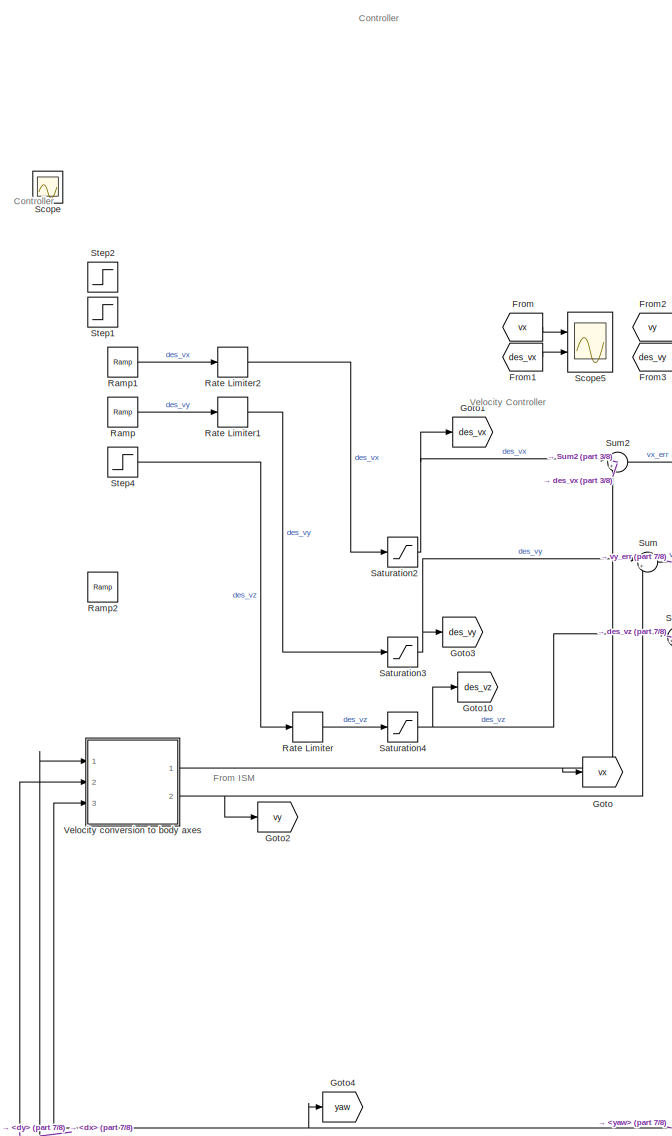
[diagram: root canvas - part 1/8, middle left region]
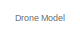
[diagram: root canvas - part 2/8, top center region]
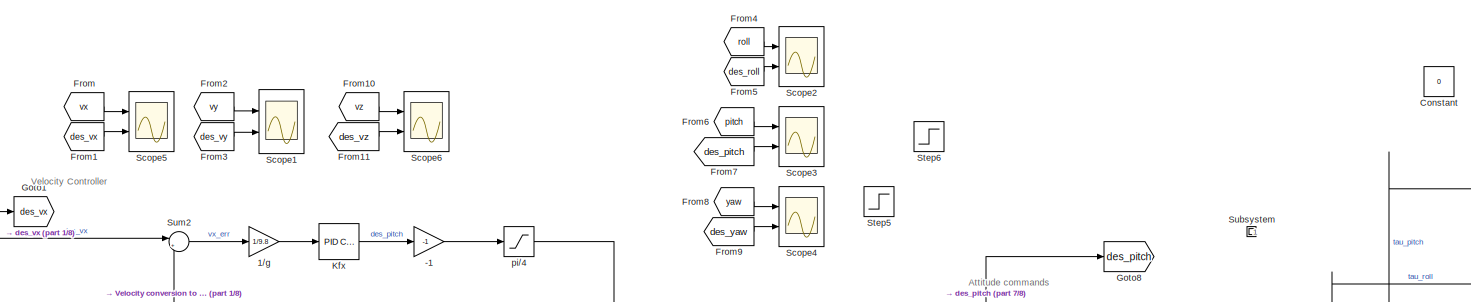
[diagram: root canvas - part 3/8, top left region]
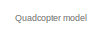
[diagram: root canvas - part 4/8, top center region]
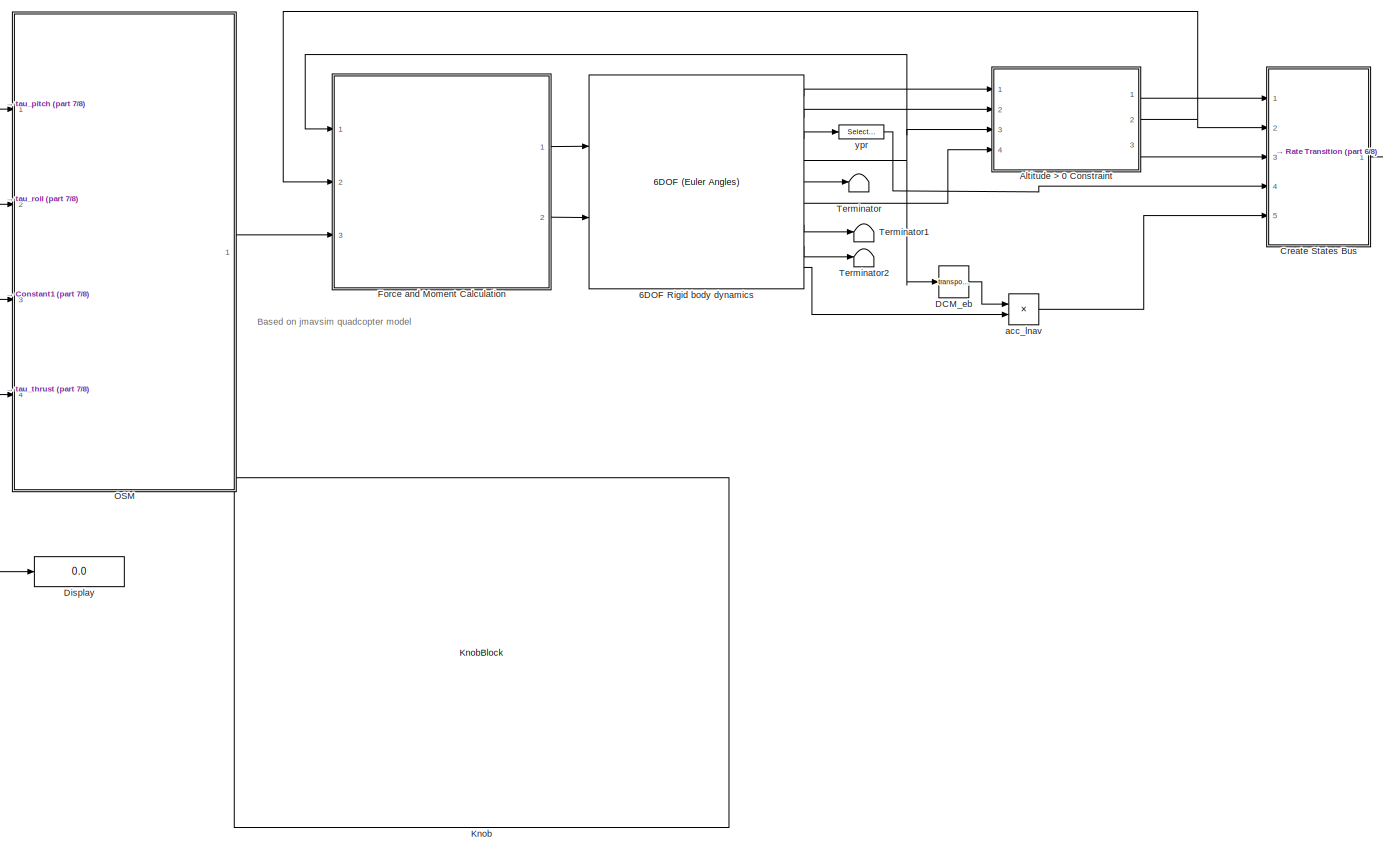
[diagram: root canvas - part 5/8, middle right region]
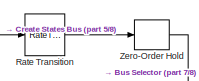
[diagram: root canvas - part 6/8, top right region]
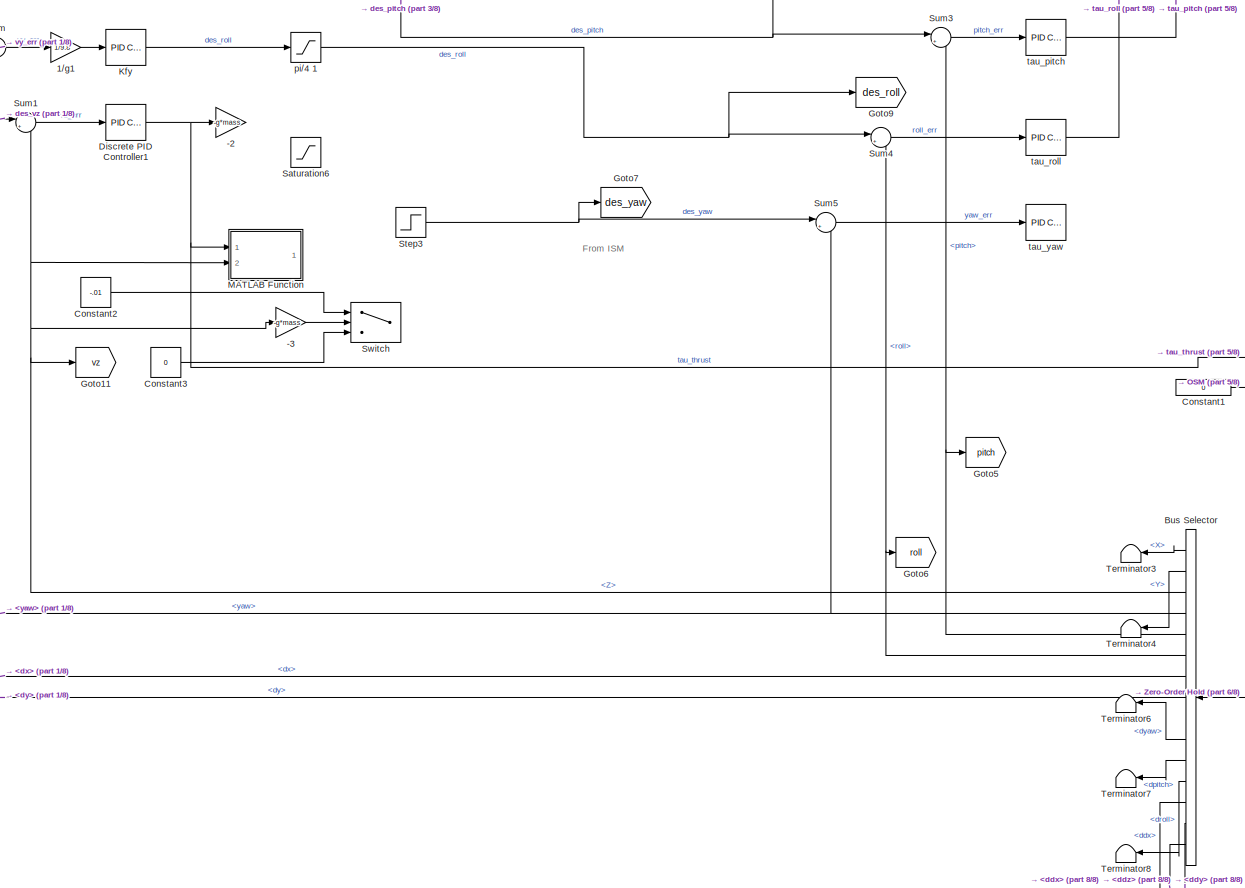
[diagram: root canvas - part 7/8, central region]
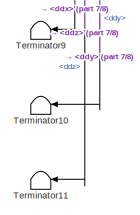
[diagram: root canvas - part 8/8, bottom center region]
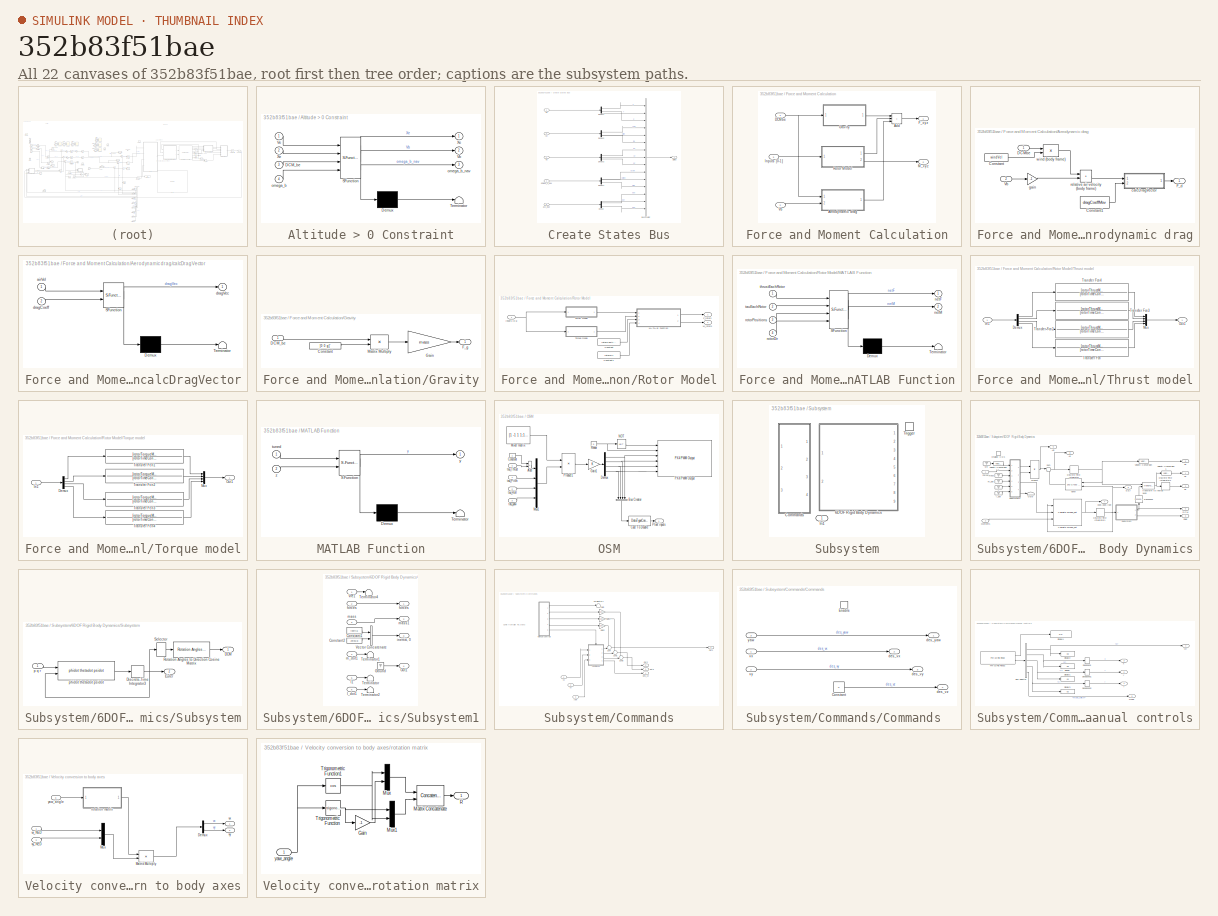
[diagram: thumbnail index - all 22 canvases of the model, root first then tree order]
MODEL slx_352b83f51bae
KIND model
CONFIG AbsTol = auto
CONFIG EnableMultiTasking = off
CONFIG FixedStep = auto
CONFIG MaxStep = auto
CONFIG MinStep = auto
CONFIG RelTol = 1e-3
CONFIG SampleTimeConstraint = Unconstrained
CONFIG SolverName = VariableStepAuto
CONFIG StartTime = 0.0
CONFIG StopTime = 100
WORKSPACE source: mxarray member
WORKSPACE Var = 0
BLOCK [Gain] -1
  Gain = -1
BLOCK [Gain] -2
  Commented = on
  Gain = -g*mass
BLOCK [Gain] -3
  Gain = -g*mass
BLOCK [Gain] 1//g
  Commented = through
  Gain = 1/9.8
BLOCK [Gain] 1//g1
  Commented = through
  Gain = 1/9.8
BLOCK [Reference] 6DOF Rigid body dynamics   REF=shared6dof/6DOF (Euler Angles)
  Ports = [2, 9]
  SourceBlock = shared6dof/6DOF (Euler Angles)
  SourceProductBaseCode = AE,PW,MT,UV,VE,VP
  SourceType = 6DOF EoM (Body Axis)
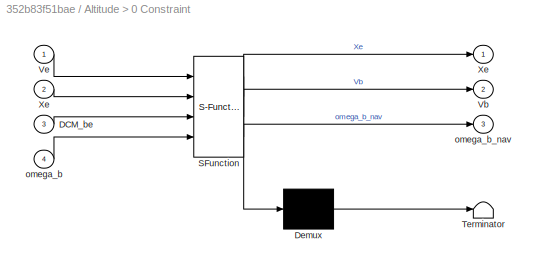
BLOCK [SubSystem] Altitude > 0 Constraint
  ErrorFcn = Stateflow.Translate.translate
  PermitHierarchicalResolution = ExplicitOnly
  Ports = [4, 3]
  RequestExecContextInheritance = off
  SFBlockType = MATLAB Function
  TreatAsAtomicUnit = on
BLOCK [Demux] Altitude > 0 Constraint/ Demux 
  Outputs = 1
  Ports = [1, 1]
BLOCK [S-Function] Altitude > 0 Constraint/ SFunction 
  EnableBusSupport = on
  FunctionName = sf_sfun
  PortCounts = [4 4]
  Ports = [4, 4]
  SFcnIsStateOwnerBlock = off
  SFunctionDeploymentMode = off
  Tag = Stateflow S-Function 4
BLOCK [Terminator] Altitude > 0 Constraint/ Terminator 
BLOCK [Inport] Altitude > 0 Constraint/DCM_be
  Port = 3
BLOCK [Outport] Altitude > 0 Constraint/Vb
  Port = 2
BLOCK [Inport] Altitude > 0 Constraint/Ve
BLOCK [Outport] Altitude > 0 Constraint/Xe
BLOCK [Inport] Altitude > 0 Constraint/Xe 
  Port = 2
BLOCK [Inport] Altitude > 0 Constraint/omega_b
  Port = 4
BLOCK [Outport] Altitude > 0 Constraint/omega_b_nav
  Port = 3
BLOCK [BusSelector] Bus Selector
  NameLocation = top
  OutputSignals = X,Y,Z,yaw,pitch,roll,dx,dy,dz,dyaw,dpitch,droll,ddx,ddy,ddz
  Ports = [1, 15]
BLOCK [Constant] Constant
  SampleTime = SampleTime
  Value = 0
BLOCK [Constant] Constant1
  SampleTime = SampleTime
  Value = 0
BLOCK [Constant] Constant2
  SampleTime = SampleTime
  Value = -.01
BLOCK [Constant] Constant3
  SampleTime = SampleTime
  Value = 0
BLOCK [SubSystem] Create States Bus
  Ports = [5, 1]
  RequestExecContextInheritance = off
BLOCK [BusCreator] Create States Bus/Bus Creator
  DisplayOption = bar
  InheritFromInputs = on
  Inputs = 15
  Ports = [15, 1]
BLOCK [Demux] Create States Bus/Demux
  Outputs = 3
  Ports = [1, 3]
BLOCK [Demux] Create States Bus/Demux1
  Outputs = 3
  Ports = [1, 3]
BLOCK [Demux] Create States Bus/Demux2
  Outputs = 3
  Ports = [1, 3]
BLOCK [Demux] Create States Bus/Demux3
  Outputs = 3
  Ports = [1, 3]
BLOCK [Demux] Create States Bus/Demux4
  Outputs = 3
  Ports = [1, 3]
BLOCK [Outport] Create States Bus/States
BLOCK [Inport] Create States Bus/Vb
  Port = 2
BLOCK [Inport] Create States Bus/Xe
BLOCK [Inport] Create States Bus/acc_lnav
  Port = 5
BLOCK [Inport] Create States Bus/omega_b_lnav
  Port = 3
BLOCK [Inport] Create States Bus/ypr
  Port = 4
BLOCK [Math] DCM_eb
  Operator = transpose
  Ports = [1, 1]
BLOCK [Reference] Discrete PID Controller1  REF=pid_lib/PID Controller
  Ports = [1, 1]
  SourceBlock = pid_lib/PID Controller
  SourceProductBaseCode = SL
  SourceType = PID 1dof
BLOCK [Display] Display
  Decimation = 1
  Ports = [1]
BLOCK [SubSystem] Force and Moment Calculation
  Ports = [3, 2]
  RequestExecContextInheritance = off
BLOCK [Sum] Force and Moment Calculation/Add
  IconShape = rectangular
  Inputs = +++
  Ports = [3, 1]
BLOCK [SubSystem] Force and Moment Calculation/Aerodynamic drag
  Ports = [2, 1]
  RequestExecContextInheritance = off
BLOCK [Constant] Force and Moment Calculation/Aerodynamic drag/Constant
  SampleTime = SampleTime
  Value = windVel
BLOCK [Constant] Force and Moment Calculation/Aerodynamic drag/Constant1
  SampleTime = SampleTime
  Value = dragCoeffMov
BLOCK [Inport] Force and Moment Calculation/Aerodynamic drag/DCMbe
BLOCK [Outport] Force and Moment Calculation/Aerodynamic drag/F_d
BLOCK [Inport] Force and Moment Calculation/Aerodynamic drag/Vb
  Port = 2
BLOCK [SubSystem] Force and Moment Calculation/Aerodynamic drag/calcDragVector
  ErrorFcn = Stateflow.Translate.translate
  PermitHierarchicalResolution = ExplicitOnly
  Ports = [2, 1]
  RequestExecContextInheritance = off
  SFBlockType = MATLAB Function
  TreatAsAtomicUnit = on
BLOCK [Demux] Force and Moment Calculation/Aerodynamic drag/calcDragVector/ Demux 
  Outputs = 1
  Ports = [1, 1]
BLOCK [S-Function] Force and Moment Calculation/Aerodynamic drag/calcDragVector/ SFunction 
  EnableBusSupport = on
  FunctionName = sf_sfun
  PortCounts = [2 2]
  Ports = [2, 2]
  SFcnIsStateOwnerBlock = off
  SFunctionDeploymentMode = off
  Tag = Stateflow S-Function 3
BLOCK [Terminator] Force and Moment Calculation/Aerodynamic drag/calcDragVector/ Terminator 
BLOCK [Inport] Force and Moment Calculation/Aerodynamic drag/calcDragVector/airVel
BLOCK [Inport] Force and Moment Calculation/Aerodynamic drag/calcDragVector/dragCoeff
  Port = 2
BLOCK [Outport] Force and Moment Calculation/Aerodynamic drag/calcDragVector/dragVec
BLOCK [Gain] Force and Moment Calculation/Aerodynamic drag/gain
  Gain = -1
BLOCK [Sum] Force and Moment Calculation/Aerodynamic drag/relative air velocity (body frame)
  IconShape = rectangular
  Ports = [2, 1]
BLOCK [Product] Force and Moment Calculation/Aerodynamic drag/wind (body frame)
  Multiplication = Matrix(*)
  Ports = [2, 1]
BLOCK [Inport] Force and Moment Calculation/DCMbe
BLOCK [Outport] Force and Moment Calculation/F_xyz
BLOCK [SubSystem] Force and Moment Calculation/Gravity
  Ports = [1, 1]
  RequestExecContextInheritance = off
BLOCK [Constant] Force and Moment Calculation/Gravity/Constant
  Value = [0 0 g]'
BLOCK [Inport] Force and Moment Calculation/Gravity/DCM_be
BLOCK [Outport] Force and Moment Calculation/Gravity/F_g
BLOCK [Gain] Force and Moment Calculation/Gravity/Gain
  Gain = mass
BLOCK [Product] Force and Moment Calculation/Gravity/Matrix Multiply
  Multiplication = Matrix(*)
  Ports = [2, 1]
BLOCK [Inport] Force and Moment Calculation/Inputs [0-1]
  Port = 3
BLOCK [Outport] Force and Moment Calculation/M_xyz
  Port = 2
BLOCK [SubSystem] Force and Moment Calculation/Rotor Model
  Ports = [1, 2]
  RequestExecContextInheritance = off
BLOCK [Constant] Force and Moment Calculation/Rotor Model/Constant
  Value = rotorPositions
BLOCK [Constant] Force and Moment Calculation/Rotor Model/Constant1
  Value = rotorDir
BLOCK [Outport] Force and Moment Calculation/Rotor Model/F_rotors
BLOCK [Inport] Force and Moment Calculation/Rotor Model/Inputs [0-1]
BLOCK [SubSystem] Force and Moment Calculation/Rotor Model/MATLAB Function
  ErrorFcn = Stateflow.Translate.translate
  PermitHierarchicalResolution = ExplicitOnly
  Ports = [4, 2]
  RequestExecContextInheritance = off
  SFBlockType = MATLAB Function
  TreatAsAtomicUnit = on
BLOCK [Demux] Force and Moment Calculation/Rotor Model/MATLAB Function/ Demux 
  Outputs = 1
  Ports = [1, 1]
BLOCK [S-Function] Force and Moment Calculation/Rotor Model/MATLAB Function/ SFunction 
  EnableBusSupport = on
  FunctionName = sf_sfun
  PortCounts = [4 3]
  Ports = [4, 3]
  SFcnIsStateOwnerBlock = off
  SFunctionDeploymentMode = off
  Tag = Stateflow S-Function 5
BLOCK [Terminator] Force and Moment Calculation/Rotor Model/MATLAB Function/ Terminator 
BLOCK [Outport] Force and Moment Calculation/Rotor Model/MATLAB Function/netF
  VectorParamsAs1DForOutWhenUnconnected = off
BLOCK [Outport] Force and Moment Calculation/Rotor Model/MATLAB Function/netM
  Port = 2
BLOCK [Inport] Force and Moment Calculation/Rotor Model/MATLAB Function/rotorDir
  Port = 4
BLOCK [Inport] Force and Moment Calculation/Rotor Model/MATLAB Function/rotorPositions
  Port = 3
BLOCK [Inport] Force and Moment Calculation/Rotor Model/MATLAB Function/tauEachRotor
  Port = 2
BLOCK [Inport] Force and Moment Calculation/Rotor Model/MATLAB Function/thrustEachRotor
BLOCK [Outport] Force and Moment Calculation/Rotor Model/M_rotors
  Port = 2
BLOCK [SubSystem] Force and Moment Calculation/Rotor Model/Thrust model
  Ports = [1, 1]
  RequestExecContextInheritance = off
BLOCK [Demux] Force and Moment Calculation/Rotor Model/Thrust model/Demux
  Ports = [1, 4]
BLOCK [Inport] Force and Moment Calculation/Rotor Model/Thrust model/In1
BLOCK [Mux] Force and Moment Calculation/Rotor Model/Thrust model/Mux
  DisplayOption = bar
  Ports = [4, 1]
BLOCK [Outport] Force and Moment Calculation/Rotor Model/Thrust model/Out1
BLOCK [TransferFcn] Force and Moment Calculation/Rotor Model/Thrust model/Transfer Fcn
  Denominator = [rotorTimeConst 1]
  Numerator = [rotorThrustMax]
BLOCK [TransferFcn] Force and Moment Calculation/Rotor Model/Thrust model/Transfer Fcn2
  Denominator = [rotorTimeConst 1]
  Numerator = [rotorThrustMax]
BLOCK [TransferFcn] Force and Moment Calculation/Rotor Model/Thrust model/Transfer Fcn3
  Denominator = [rotorTimeConst 1]
  Numerator = [rotorThrustMax]
BLOCK [TransferFcn] Force and Moment Calculation/Rotor Model/Thrust model/Transfer Fcn4
  Denominator = [rotorTimeConst 1]
  Numerator = [rotorThrustMax]
BLOCK [SubSystem] Force and Moment Calculation/Rotor Model/Torque model
  Ports = [1, 1]
  RequestExecContextInheritance = off
BLOCK [Demux] Force and Moment Calculation/Rotor Model/Torque model/Demux
  Ports = [1, 4]
BLOCK [Inport] Force and Moment Calculation/Rotor Model/Torque model/In1
BLOCK [Mux] Force and Moment Calculation/Rotor Model/Torque model/Mux
  DisplayOption = bar
  Ports = [4, 1]
BLOCK [Outport] Force and Moment Calculation/Rotor Model/Torque model/Out1
BLOCK [TransferFcn] Force and Moment Calculation/Rotor Model/Torque model/Transfer Fcn1
  Denominator = [rotorTimeConst 1]
  Numerator = [rotorTorqueMax]
BLOCK [TransferFcn] Force and Moment Calculation/Rotor Model/Torque model/Transfer Fcn2
  Denominator = [rotorTimeConst 1]
  Numerator = [rotorTorqueMax]
BLOCK [TransferFcn] Force and Moment Calculation/Rotor Model/Torque model/Transfer Fcn3
  Denominator = [rotorTimeConst 1]
  Numerator = [rotorTorqueMax]
BLOCK [TransferFcn] Force and Moment Calculation/Rotor Model/Torque model/Transfer Fcn4
  Denominator = [rotorTimeConst 1]
  Numerator = [rotorTorqueMax]
BLOCK [Inport] Force and Moment Calculation/Vb
  Port = 2
BLOCK [From] From
  GotoTag = vx
BLOCK [From] From1
  GotoTag = des_vx
BLOCK [From] From10
  GotoTag = vz
BLOCK [From] From11
  GotoTag = des_vz
BLOCK [From] From2
  GotoTag = vy
BLOCK [From] From3
  GotoTag = des_vy
BLOCK [From] From4
  GotoTag = roll
  NameLocation = right
BLOCK [From] From5
  GotoTag = des_roll
BLOCK [From] From6
  GotoTag = pitch
BLOCK [From] From7
  GotoTag = des_pitch
BLOCK [From] From8
  GotoTag = yaw
BLOCK [From] From9
  GotoTag = des_yaw
BLOCK [Goto] Goto
  GotoTag = vx
BLOCK [Goto] Goto1
  GotoTag = des_vx
BLOCK [Goto] Goto10
  GotoTag = des_vz
BLOCK [Goto] Goto11
  GotoTag = vz
BLOCK [Goto] Goto2
  GotoTag = vy
BLOCK [Goto] Goto3
  GotoTag = des_vy
BLOCK [Goto] Goto4
  GotoTag = yaw
BLOCK [Goto] Goto5
  GotoTag = pitch
BLOCK [Goto] Goto6
  GotoTag = roll
BLOCK [Goto] Goto7
  GotoTag = des_yaw
BLOCK [Goto] Goto8
  GotoTag = des_pitch
BLOCK [Goto] Goto9
  GotoTag = des_roll
BLOCK [Reference] Kfx  REF=pid_lib/PID Controller
  Ports = [1, 1]
  SourceBlock = pid_lib/PID Controller
  SourceProductBaseCode = SL
  SourceType = PID 1dof
BLOCK [Reference] Kfy  REF=pid_lib/PID Controller
  Ports = [1, 1]
  SourceBlock = pid_lib/PID Controller
  SourceProductBaseCode = SL
  SourceType = PID 1dof
BLOCK [KnobBlock] Knob
  ScaleMax = 0
  ScaleMin = -1
BLOCK [SubSystem] MATLAB Function
  ErrorFcn = Stateflow.Translate.translate
  PermitHierarchicalResolution = ExplicitOnly
  Ports = [2, 1]
  RequestExecContextInheritance = off
  SFBlockType = MATLAB Function
  TreatAsAtomicUnit = on
BLOCK [Demux] MATLAB Function/ Demux 
  Outputs = 1
  Ports = [1, 1]
BLOCK [S-Function] MATLAB Function/ SFunction 
  EnableBusSupport = on
  FunctionName = sf_sfun
  PortCounts = [2 2]
  Ports = [2, 2]
  SFcnIsStateOwnerBlock = off
  SFunctionDeploymentMode = off
  Tag = Stateflow S-Function 2
BLOCK [Terminator] MATLAB Function/ Terminator 
BLOCK [Inport] MATLAB Function/tuned
BLOCK [Outport] MATLAB Function/y
BLOCK [Inport] MATLAB Function/z
  Port = 2
BLOCK [SubSystem] OSM
  Ports = [4, 1]
  RequestExecContextInheritance = off
BLOCK [Sum] OSM/Add
  IconShape = rectangular
  Ports = [2, 1]
BLOCK [BusCreator] OSM/Bus Creator
  DisplayOption = bar
  InheritFromInputs = on
  Inputs = 4
  NameLocation = left
  Ports = [4, 1]
BLOCK [DataTypeConversion] OSM/Cast To Double
  OutDataTypeStr = double
  RndMeth = Floor
  SaturateOnIntegerOverflow = off
BLOCK [Constant] OSM/Constant
  SampleTime = SampleTime
BLOCK [Demux] OSM/Demux
  Ports = [1, 4]
BLOCK [Gain] OSM/Gain1
  OutDataTypeStr = uint16
BLOCK [Constant] OSM/Mixer matrix
  NameLocation = top
  OutDataTypeStr = Inherit: Inherit via back propagation
  Value = [1 -1 1 1;1 1 -1 1;1 -1 -1 -1;1 1 1 -1]
BLOCK [Mux] OSM/Mux1
  DisplayOption = bar
  Ports = [4, 1]
BLOCK [Logic] OSM/NOT
  AllPortsSameDT = off
  IconShape = distinctive
  Operator = NOT
  OutDataTypeStr = boolean
  Ports = [1, 1]
BLOCK [Reference] OSM/PX4 PWM Output  REF=px4lib/PX4 PWM Output
  Ports = [6]
  SourceBlock = px4lib/PX4 PWM Output
  SourceProductBaseCode = PX4AUTOPILOTS
  SourceType = PX4 PWM Output
BLOCK [Outport] OSM/Plant inputs
BLOCK [Product] OSM/Product1
  Multiplication = Matrix(*)
  Ports = [2, 1]
  RndMeth = Zero
BLOCK [Constant] OSM/Reset
  OutDataTypeStr = boolean
  Value = 0
BLOCK [Inport] OSM/tau_Pitch
BLOCK [Inport] OSM/tau_Roll
  Port = 2
BLOCK [Inport] OSM/tau_Thrust
  Port = 4
BLOCK [Inport] OSM/tau_yaw
  Port = 3
BLOCK [Reference] Ramp  REF=simulink/Sources/Ramp
  Ports = [0, 1]
  SourceBlock = simulink/Sources/Ramp
  SourceProductBaseCode = SL
  SourceType = Ramp
BLOCK [Reference] Ramp1  REF=simulink/Sources/Ramp
  Ports = [0, 1]
  SourceBlock = simulink/Sources/Ramp
  SourceProductBaseCode = SL
  SourceType = Ramp
BLOCK [Reference] Ramp2  REF=simulink/Sources/Ramp
  Ports = [0, 1]
  SourceBlock = simulink/Sources/Ramp
  SourceProductBaseCode = SL
  SourceType = Ramp
BLOCK [RateLimiter] Rate Limiter
  Commented = through
  FallingSlewLimit = -3
  InitialCondition = -5
  RisingSlewLimit = 3
  SampleTimeMode = inherited
BLOCK [RateLimiter] Rate Limiter1
  Commented = through
  FallingSlewLimit = -3
  RisingSlewLimit = 3
BLOCK [RateLimiter] Rate Limiter2
  Commented = through
  FallingSlewLimit = -3
  RisingSlewLimit = 3
BLOCK [RateTransition] Rate Transition
  OutPortSampleTime = SampleTime
BLOCK [Saturate] Saturation2
  LinearizeAsGain = off
  LowerLimit = -8
  UpperLimit = 8
BLOCK [Saturate] Saturation3
  LinearizeAsGain = off
  LowerLimit = -8
  UpperLimit = 8
BLOCK [Saturate] Saturation4
  Commented = through
  LowerLimit = -6
  UpperLimit = 1
BLOCK [Saturate] Saturation6
  Commented = through
  LowerLimit = -5*g*mass
  NameLocation = left
  SampleTime = SampleTime
  UpperLimit = .12*g*mass
BLOCK [Scope] Scope
  Floating = off
  IOType = viewer
  NumInputPorts = 1
  Ports = []
  ScopeSpecificationString = Simulink.scopes.TimeScopeBlockCfg('CurrentConfiguration', extmgr.ConfigurationSet(extmgr.Configuration('Core','General UI',true),extmgr.Configuration('Core','Source UI',true),extmgr.Configuration('Sources','WiredSimulink',true),extmgr.Configuration('Visuals','Time Domain',true,'SerializedDisplays',{struct('MinYLimReal','0.9','MaxYLimReal','1.1','YLabelReal','','MinYLimMag','0.9','MaxYLimMag','1.1'...<+1344ch>
BLOCK [Scope] Scope1
  Floating = off
  NumInputPorts = 2
  Ports = [2]
  ScopeSpecificationString = Simulink.scopes.TimeScopeBlockCfg('CurrentConfiguration', extmgr.ConfigurationSet(extmgr.Configuration('Core','General UI',true),extmgr.Configuration('Core','Source UI',true),extmgr.Configuration('Sources','WiredSimulink',true,'DataLoggingVariableName','ScopeData2'),extmgr.Configuration('Visuals','Time Domain',true,'SerializedDisplays',{struct('MinYLimReal','-1.06882','MaxYLimReal','9.61941','YLab...<+1541ch>
BLOCK [Scope] Scope2
  Floating = off
  NumInputPorts = 2
  Ports = [2]
  ScopeSpecificationString = Simulink.scopes.TimeScopeBlockCfg('CurrentConfiguration', extmgr.ConfigurationSet(extmgr.Configuration('Core','General UI',true),extmgr.Configuration('Core','Source UI',true),extmgr.Configuration('Sources','WiredSimulink',true,'DataLoggingVariableName','ScopeData1'),extmgr.Configuration('Visuals','Time Domain',true,'SerializedDisplays',{struct('MinYLimReal','-0.04672','MaxYLimReal','0.42048','YLab...<+1520ch>
BLOCK [Scope] Scope3
  Floating = off
  NumInputPorts = 2
  Ports = [2]
  ScopeSpecificationString = Simulink.scopes.TimeScopeBlockCfg('CurrentConfiguration', extmgr.ConfigurationSet(extmgr.Configuration('Core','General UI',true),extmgr.Configuration('Core','Source UI',true),extmgr.Configuration('Sources','WiredSimulink',true,'DataLoggingVariableName','ScopeData2'),extmgr.Configuration('Visuals','Time Domain',true,'SerializedDisplays',{struct('MinYLimReal','-0.42674','MaxYLimReal','0.2357','YLabe...<+1521ch>
BLOCK [Scope] Scope4
  Floating = off
  NumInputPorts = 2
  Ports = [2]
  ScopeSpecificationString = Simulink.scopes.TimeScopeBlockCfg('CurrentConfiguration', extmgr.ConfigurationSet(extmgr.Configuration('Core','General UI',true),extmgr.Configuration('Core','Source UI',true),extmgr.Configuration('Sources','WiredSimulink',true,'DataLoggingVariableName','ScopeData3'),extmgr.Configuration('Visuals','Time Domain',true,'SerializedDisplays',{struct('MinYLimReal','-0.14509','MaxYLimReal','1.30585','YLab...<+1468ch>
BLOCK [Scope] Scope5
  Floating = off
  NumInputPorts = 2
  Ports = [2]
  ScopeSpecificationString = Simulink.scopes.TimeScopeBlockCfg('CurrentConfiguration', extmgr.ConfigurationSet(extmgr.Configuration('Core','General UI',true),extmgr.Configuration('Core','Source UI',true),extmgr.Configuration('Sources','WiredSimulink',true,'DataLoggingVariableName','ScopeData1'),extmgr.Configuration('Visuals','Time Domain',true,'SerializedDisplays',{struct('MinYLimReal','-1.15473','MaxYLimReal','10.32477','YLa...<+1519ch>
BLOCK [Scope] Scope6
  Floating = off
  NumInputPorts = 2
  Ports = [2]
  ScopeSpecificationString = Simulink.scopes.TimeScopeBlockCfg('CurrentConfiguration', extmgr.ConfigurationSet(extmgr.Configuration('Core','General UI',true),extmgr.Configuration('Core','Source UI',true),extmgr.Configuration('Sources','WiredSimulink',true,'DataLoggingVariableName','ScopeData1'),extmgr.Configuration('Visuals','Time Domain',true,'SerializedDisplays',{struct('MinYLimReal','-6.12529','MaxYLimReal','-4.87235','YLa...<+1512ch>
BLOCK [Step] Step1
  Commented = on
  SampleTime = SampleTime
  Time = 40
BLOCK [Step] Step2
  Commented = on
  SampleTime = SampleTime
  Time = 10
BLOCK [Step] Step3
  SampleTime = SampleTime
BLOCK [Step] Step4
  After = -6
  Before = -5
  SampleTime = SampleTime
BLOCK [Step] Step5
  After = pi/5
  SampleTime = SampleTime
BLOCK [Step] Step6
  After = pi/5
  SampleTime = SampleTime
BLOCK [SubSystem] Subsystem
  Ports = [1, 0, 0, 1]
  RequestExecContextInheritance = off
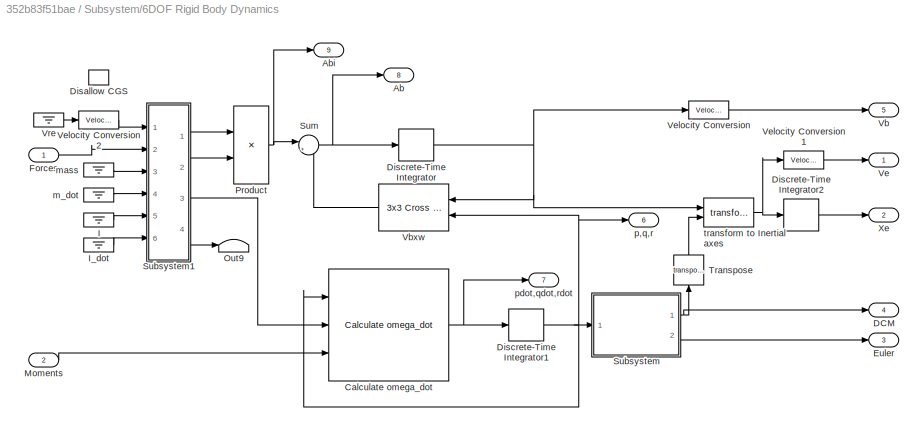
BLOCK [SubSystem] Subsystem/6DOF Rigid Body Dynamics
  Commented = on
  Ports = [2, 9]
  RequestExecContextInheritance = off
BLOCK [Outport] Subsystem/6DOF Rigid Body Dynamics/Ab
  Port = 8
  Unit = m/s^2
  VectorParamsAs1DForOutWhenUnconnected = off
BLOCK [Outport] Subsystem/6DOF Rigid Body Dynamics/Abi
  Port = 9
  Unit = m/s^2
BLOCK [Reference] Subsystem/6DOF Rigid Body Dynamics/Calculate omega_dot  REF=shared6dofsys/Calculate omega_dot  (lib defined in slx_91fbb8bad28b)
  Ports = [3, 1]
  SourceBlock = shared6dofsys/Calculate omega_dot
  SourceProductBaseCode = AE,PW,MT,UV,VE,VP
BLOCK [Outport] Subsystem/6DOF Rigid Body Dynamics/DCM
  Port = 4
  Unit = 1
  VectorParamsAs1DForOutWhenUnconnected = off
BLOCK [UnitConfiguration] Subsystem/6DOF Rigid Body Dynamics/Disallow CGS
  AllowAllUnitSystems = off
  UnitSystemsStr = English,SI,SI (extended)
BLOCK [DiscreteIntegrator] Subsystem/6DOF Rigid Body Dynamics/Discrete-Time Integrator
  ICPrevOutput = DiscIntNeverNeededParam
  ICPrevScaledInput = DiscIntNeverNeededParam
  InitialConditionSetting = Auto
  Ports = [1, 1]
  SampleTime = SampleTime
BLOCK [DiscreteIntegrator] Subsystem/6DOF Rigid Body Dynamics/Discrete-Time Integrator1
  ICPrevOutput = DiscIntNeverNeededParam
  ICPrevScaledInput = DiscIntNeverNeededParam
  InitialConditionSetting = Auto
  Ports = [1, 1]
  SampleTime = SampleTime
BLOCK [DiscreteIntegrator] Subsystem/6DOF Rigid Body Dynamics/Discrete-Time Integrator2
  ICPrevOutput = DiscIntNeverNeededParam
  ICPrevScaledInput = DiscIntNeverNeededParam
  InitialConditionSetting = Auto
  Ports = [1, 1]
  SampleTime = SampleTime
BLOCK [Outport] Subsystem/6DOF Rigid Body Dynamics/Euler
  Port = 3
  Unit = rad
  VectorParamsAs1DForOutWhenUnconnected = off
BLOCK [Inport] Subsystem/6DOF Rigid Body Dynamics/Forces
  PortDimensions = 3
  Unit = N
BLOCK [Ground] Subsystem/6DOF Rigid Body Dynamics/I
BLOCK [Ground] Subsystem/6DOF Rigid Body Dynamics/I_dot
BLOCK [Inport] Subsystem/6DOF Rigid Body Dynamics/Moments
  Port = 2
  PortDimensions = 3
  Unit = N*m
BLOCK [Terminator] Subsystem/6DOF Rigid Body Dynamics/Out9
BLOCK [Product] Subsystem/6DOF Rigid Body Dynamics/Product
  Inputs = */
  OutDataTypeStr = Inherit: Same as first input
  Ports = [2, 1]
  SaturateOnIntegerOverflow = on
BLOCK [SubSystem] Subsystem/6DOF Rigid Body Dynamics/Subsystem
  Ports = [1, 2]
  RequestExecContextInheritance = off
BLOCK [Outport] Subsystem/6DOF Rigid Body Dynamics/Subsystem/DCM
  VectorParamsAs1DForOutWhenUnconnected = off
BLOCK [DiscreteIntegrator] Subsystem/6DOF Rigid Body Dynamics/Subsystem/Discrete-Time Integrator3
  ICPrevOutput = DiscIntNeverNeededParam
  ICPrevScaledInput = DiscIntNeverNeededParam
  InitialConditionSetting = Auto
  Ports = [1, 1]
  SampleTime = SampleTime
BLOCK [Outport] Subsystem/6DOF Rigid Body Dynamics/Subsystem/Euler
  Port = 2
  VectorParamsAs1DForOutWhenUnconnected = off
BLOCK [Reference] Subsystem/6DOF Rigid Body Dynamics/Subsystem/Rotation Angles to Direction Cosine Matrix  REF=sharedtransform/Rotation Angles to
Direction Cosine Matrix
  AttributesFormatString = Rotation Order: %<rotationOrder>
  Ports = [1, 1]
  SourceBlock = sharedtransform/Rotation Angles to\nDirection Cosine Matrix
  SourceProductBaseCode = AE,PW,MT,UV,VE,VP
  SourceType = Ang2DCM
BLOCK [Selector] Subsystem/6DOF Rigid Body Dynamics/Subsystem/Selector
  IndexOptions = Index vector (dialog)
  Indices = [3 2 1]
  InputPortWidth = 3
  OutputSizes = 1
  Ports = [1, 1]
BLOCK [Inport] Subsystem/6DOF Rigid Body Dynamics/Subsystem/p q r 
BLOCK [Reference] Subsystem/6DOF Rigid Body Dynamics/Subsystem/phidot thetadot psidot  REF=shared6dofsys/DCM & Euler Angles (Euler)/phidot  (lib defined in slx_91fbb8bad28b)
thetadot
psidot
  Ports = [2, 1]
  SourceBlock = shared6dofsys/DCM & Euler Angles (Euler)/phidot\nthetadot\npsidot
  SourceProductBaseCode = AE,PW,MT,UV,VE,VP
  SourceType = SubSystem
BLOCK [SubSystem] Subsystem/6DOF Rigid Body Dynamics/Subsystem1
  Ports = [6, 4]
  RequestExecContextInheritance = off
BLOCK [Constant] Subsystem/6DOF Rigid Body Dynamics/Subsystem1/Constant1
  OutDataTypeStr = Inherit: Inherit via back propagation
  Value = inertia
BLOCK [Constant] Subsystem/6DOF Rigid Body Dynamics/Subsystem1/Constant2
  Value = zeros(3)
BLOCK [Ground] Subsystem/6DOF Rigid Body Dynamics/Subsystem1/Ground
BLOCK [Inport] Subsystem/6DOF Rigid Body Dynamics/Subsystem1/I1
  OutDataTypeStr = double
  Port = 5
BLOCK [Inport] Subsystem/6DOF Rigid Body Dynamics/Subsystem1/I_dot1
  OutDataTypeStr = double
  Port = 6
BLOCK [Outport] Subsystem/6DOF Rigid Body Dynamics/Subsystem1/Out1
  Port = 4
  VectorParamsAs1DForOutWhenUnconnected = off
BLOCK [Terminator] Subsystem/6DOF Rigid Body Dynamics/Subsystem1/Terminator
BLOCK [Terminator] Subsystem/6DOF Rigid Body Dynamics/Subsystem1/Terminator1
BLOCK [Terminator] Subsystem/6DOF Rigid Body Dynamics/Subsystem1/Terminator2
BLOCK [Terminator] Subsystem/6DOF Rigid Body Dynamics/Subsystem1/Terminator4
BLOCK [Concatenate] Subsystem/6DOF Rigid Body Dynamics/Subsystem1/Vector Concatenate
  Mode = Multidimensional array
  Ports = [2, 1]
BLOCK [Inport] Subsystem/6DOF Rigid Body Dynamics/Subsystem1/Vre1
BLOCK [Inport] Subsystem/6DOF Rigid Body Dynamics/Subsystem1/forces
  Port = 2
BLOCK [Outport] Subsystem/6DOF Rigid Body Dynamics/Subsystem1/forces 
  VectorParamsAs1DForOutWhenUnconnected = off
BLOCK [Outport] Subsystem/6DOF Rigid Body Dynamics/Subsystem1/inertia, 0
  Port = 3
  VectorParamsAs1DForOutWhenUnconnected = off
BLOCK [Inport] Subsystem/6DOF Rigid Body Dynamics/Subsystem1/m_dot1
  OutDataTypeStr = double
  Port = 4
BLOCK [Inport] Subsystem/6DOF Rigid Body Dynamics/Subsystem1/mass 
  Port = 3
BLOCK [Outport] Subsystem/6DOF Rigid Body Dynamics/Subsystem1/mass1
  Port = 2
  VectorParamsAs1DForOutWhenUnconnected = off
BLOCK [Sum] Subsystem/6DOF Rigid Body Dynamics/Sum
  Inputs = |++
  Ports = [2, 1]
  SaturateOnIntegerOverflow = on
BLOCK [Math] Subsystem/6DOF Rigid Body Dynamics/Transpose
  NameLocation = right
  Operator = transpose
  Ports = [1, 1]
  SignedPower = on
BLOCK [Outport] Subsystem/6DOF Rigid Body Dynamics/Vb
  Port = 5
  Unit = m/s
  VectorParamsAs1DForOutWhenUnconnected = off
BLOCK [Reference] Subsystem/6DOF Rigid Body Dynamics/Vbxw  REF=sharedutil/3x3 Cross Product
  Ports = [2, 1]
  SourceBlock = sharedutil/3x3 Cross Product
  SourceProductBaseCode = AE,PW,MT,UV,VE,VP
  SourceType = CrossProduct
BLOCK [Outport] Subsystem/6DOF Rigid Body Dynamics/Ve
  Unit = m/s
  VectorParamsAs1DForOutWhenUnconnected = off
BLOCK [Reference] Subsystem/6DOF Rigid Body Dynamics/Velocity Conversion  REF=shared6dof/6DOF (Euler Angles)/Velocity Conversion
  Ports = [1, 1]
  SourceBlock = shared6dof/6DOF (Euler Angles)/Velocity Conversion
  SourceProductBaseCode = AE,PW,MT,UV,VE,VP
  SourceType = SubSystem
BLOCK [Reference] Subsystem/6DOF Rigid Body Dynamics/Velocity Conversion1  REF=shared6dof/6DOF (Euler Angles)/Velocity Conversion1
  Ports = [1, 1]
  SourceBlock = shared6dof/6DOF (Euler Angles)/Velocity Conversion1
  SourceProductBaseCode = AE,PW,MT,UV,VE,VP
  SourceType = SubSystem
BLOCK [Reference] Subsystem/6DOF Rigid Body Dynamics/Velocity Conversion2  REF=shared6dof/6DOF (Euler Angles)/Velocity Conversion2
  Ports = [1, 1]
  SourceBlock = shared6dof/6DOF (Euler Angles)/Velocity Conversion2
  SourceProductBaseCode = AE,PW,MT,UV,VE,VP
  SourceType = SubSystem
BLOCK [Ground] Subsystem/6DOF Rigid Body Dynamics/Vre
BLOCK [Outport] Subsystem/6DOF Rigid Body Dynamics/Xe
  Port = 2
  Unit = m
  VectorParamsAs1DForOutWhenUnconnected = off
BLOCK [Ground] Subsystem/6DOF Rigid Body Dynamics/m_dot
BLOCK [Ground] Subsystem/6DOF Rigid Body Dynamics/mass
BLOCK [Outport] Subsystem/6DOF Rigid Body Dynamics/p,q,r
  Port = 6
  Unit = rad/s
  VectorParamsAs1DForOutWhenUnconnected = off
BLOCK [Outport] Subsystem/6DOF Rigid Body Dynamics/pdot,qdot,rdot
  Port = 7
  Unit = rad/s^2
  VectorParamsAs1DForOutWhenUnconnected = off
BLOCK [Reference] Subsystem/6DOF Rigid Body Dynamics/transform to Inertial axes   REF=shared6dof/6DOF (Euler Angles)/transform to
Inertial axes 
  Ports = [2, 1]
  SourceBlock = shared6dof/6DOF (Euler Angles)/transform to\nInertial axes
  SourceProductBaseCode = AE,PW,MT,UV,VE,VP
  SourceType = Vector Transformation
BLOCK [SubSystem] Subsystem/Commands
  Commented = on
  Ports = [3, 4]
  RequestExecContextInheritance = off
BLOCK [SubSystem] Subsystem/Commands/Commands 
  Ports = [3, 4, 1]
  RequestExecContextInheritance = off
BLOCK [Constant] Subsystem/Commands/Commands /Constant
  Value = 0
BLOCK [EnablePort] Subsystem/Commands/Commands /Enable
  Ports = []
BLOCK [Outport] Subsystem/Commands/Commands /des_vx
  Port = 2
BLOCK [Outport] Subsystem/Commands/Commands /des_vy
  Port = 3
BLOCK [Outport] Subsystem/Commands/Commands /des_vz
  Port = 4
BLOCK [Outport] Subsystem/Commands/Commands /des_yaw
BLOCK [Inport] Subsystem/Commands/Commands /vx
BLOCK [Inport] Subsystem/Commands/Commands /vy
  Port = 2
BLOCK [Inport] Subsystem/Commands/Commands /yaw
  Port = 3
BLOCK [Gain] Subsystem/Commands/Gain
  Gain = .001
BLOCK [Gain] Subsystem/Commands/Gain1
  Gain = .001
BLOCK [Gain] Subsystem/Commands/Gain2
  Gain = .001
BLOCK [SubSystem] Subsystem/Commands/Manual controls
  Ports = [0, 5]
  RequestExecContextInheritance = off
BLOCK [Outport] Subsystem/Commands/Manual controls/<z>
BLOCK [BusSelector] Subsystem/Commands/Manual controls/Bus Selector
  OutputSignals = z,x,y,r,mode_switch
  Ports = [1, 5]
BLOCK [DeadZone] Subsystem/Commands/Manual controls/Deadband
  LowerValue = -0.05
  UpperValue = 0.05
BLOCK [DeadZone] Subsystem/Commands/Manual controls/Deadband1
  LowerValue = -0.05
  UpperValue = 0.05
BLOCK [DeadZone] Subsystem/Commands/Manual controls/Deadband2
  LowerValue = -0.05
  UpperValue = 0.05
BLOCK [Display] Subsystem/Commands/Manual controls/Display
  Decimation = 1
  Ports = [1]
BLOCK [Display] Subsystem/Commands/Manual controls/Display1
  Decimation = 1
  Ports = [1]
BLOCK [Display] Subsystem/Commands/Manual controls/Display2
  Decimation = 1
  Ports = [1]
BLOCK [Display] Subsystem/Commands/Manual controls/Display3
  Decimation = 1
  Ports = [1]
BLOCK [Display] Subsystem/Commands/Manual controls/Display4
  Decimation = 1
  Ports = [1]
BLOCK [Reference] Subsystem/Commands/Manual controls/PX4 uORB Read2  REF=px4uORBlib/PX4 uORB Read
  Ports = [0, 2]
  SourceBlock = px4uORBlib/PX4 uORB Read
  SourceProductBaseCode = PX4AUTOPILOTS
  SourceType = PX4 uORB Read
BLOCK [Outport] Subsystem/Commands/Manual controls/mode
  Port = 5
BLOCK [Outport] Subsystem/Commands/Manual controls/r
  Port = 4
BLOCK [Outport] Subsystem/Commands/Manual controls/x
  Port = 3
BLOCK [Outport] Subsystem/Commands/Manual controls/y
  Port = 2
BLOCK [Outport] Subsystem/Commands/Out1
BLOCK [Outport] Subsystem/Commands/Out2
  Port = 2
BLOCK [Outport] Subsystem/Commands/Out3
  Port = 3
BLOCK [Sum] Subsystem/Commands/Sum
  Inputs = ++|
  Ports = [2, 1]
BLOCK [Sum] Subsystem/Commands/Sum1
  Inputs = ++|
  Ports = [2, 1]
BLOCK [Sum] Subsystem/Commands/Sum3
  Inputs = ++|
  Ports = [2, 1]
BLOCK [Terminator] Subsystem/Commands/Terminator1
BLOCK [Outport] Subsystem/Commands/des_vz
  Port = 4
BLOCK [Inport] Subsystem/Commands/vx
BLOCK [Inport] Subsystem/Commands/vy
  Port = 2
BLOCK [Inport] Subsystem/Commands/yaw
  Port = 3
BLOCK [Inport] Subsystem/In1
BLOCK [TriggerPort] Subsystem/Trigger
  PortDimensions = 1
  Ports = []
  StatesWhenEnabling = held
  VariantControl = Variant
BLOCK [Sum] Sum
  Inputs = |+-
  Ports = [2, 1]
BLOCK [Sum] Sum1
  Inputs = |+-
  Ports = [2, 1]
BLOCK [Sum] Sum2
  Inputs = |+-
  Ports = [2, 1]
BLOCK [Sum] Sum3
  Inputs = |+-
  Ports = [2, 1]
BLOCK [Sum] Sum4
  Inputs = |+-
  Ports = [2, 1]
BLOCK [Sum] Sum5
  Inputs = |+-
  Ports = [2, 1]
BLOCK [Switch] Switch
  Criteria = u2 > Threshold
  InputSameDT = off
  SaturateOnIntegerOverflow = off
  Threshold = 5
BLOCK [Terminator] Terminator
BLOCK [Terminator] Terminator1
BLOCK [Terminator] Terminator10
  NameLocation = top
BLOCK [Terminator] Terminator11
  NameLocation = top
BLOCK [Terminator] Terminator2
BLOCK [Terminator] Terminator3
  NameLocation = top
BLOCK [Terminator] Terminator4
  NameLocation = top
BLOCK [Terminator] Terminator6
  NameLocation = top
BLOCK [Terminator] Terminator7
  NameLocation = top
BLOCK [Terminator] Terminator8
  NameLocation = top
BLOCK [Terminator] Terminator9
  NameLocation = top
BLOCK [SubSystem] Velocity conversion to body axes
  Ports = [3, 2]
  RequestExecContextInheritance = off
BLOCK [Demux] Velocity conversion to body axes/Demux
  Outputs = 2
  Ports = [1, 2]
BLOCK [Product] Velocity conversion to body axes/Matrix Multiply
  Multiplication = Matrix(*)
  Ports = [2, 1]
BLOCK [Mux] Velocity conversion to body axes/Mux
  DisplayOption = bar
  Inputs = 2
  Ports = [2, 1]
BLOCK [SubSystem] Velocity conversion to body axes/rotation matrix
  Ports = [1, 1]
  RequestExecContextInheritance = off
BLOCK [Gain] Velocity conversion to body axes/rotation matrix/Gain
  Gain = -1
BLOCK [Concatenate] Velocity conversion to body axes/rotation matrix/Matrix Concatenate
  ConcatenateDimension = 2
  Mode = Multidimensional array
  Ports = [2, 1]
BLOCK [Mux] Velocity conversion to body axes/rotation matrix/Mux
  DisplayOption = bar
  Inputs = 2
  Ports = [2, 1]
BLOCK [Mux] Velocity conversion to body axes/rotation matrix/Mux1
  DisplayOption = bar
  Inputs = 2
  Ports = [2, 1]
BLOCK [Outport] Velocity conversion to body axes/rotation matrix/R
BLOCK [Trigonometry] Velocity conversion to body axes/rotation matrix/Trigonometric Function
  Ports = [1, 1]
BLOCK [Trigonometry] Velocity conversion to body axes/rotation matrix/Trigonometric Function1
  Operator = cos
  Ports = [1, 1]
BLOCK [Inport] Velocity conversion to body axes/rotation matrix/yaw_angle
BLOCK [Outport] Velocity conversion to body axes/vx
BLOCK [Inport] Velocity conversion to body axes/vx_NED
BLOCK [Outport] Velocity conversion to body axes/vy
  Port = 2
BLOCK [Inport] Velocity conversion to body axes/vy_NED
  Port = 2
BLOCK [Inport] Velocity conversion to body axes/yaw_angle
  Port = 3
BLOCK [ZeroOrderHold] Zero-Order Hold
  Commented = through
  SampleTime = SampleTime
BLOCK [Product] acc_lnav
  Multiplication = Matrix(*)
  Ports = [2, 1]
BLOCK [Saturate] pi//4
  LowerLimit = -pi/4
  UpperLimit = pi/4
BLOCK [Saturate] pi//4 1
  LowerLimit = -pi/4
  UpperLimit = pi/4
BLOCK [Reference] tau_pitch  REF=pid_lib/PID Controller
  Ports = [1, 1]
  SourceBlock = pid_lib/PID Controller
  SourceProductBaseCode = SL
  SourceType = PID 1dof
BLOCK [Reference] tau_roll  REF=pid_lib/PID Controller
  Ports = [1, 1]
  SourceBlock = pid_lib/PID Controller
  SourceProductBaseCode = SL
  SourceType = PID 1dof
BLOCK [Reference] tau_yaw  REF=pid_lib/PID Controller
  Ports = [1, 1]
  SourceBlock = pid_lib/PID Controller
  SourceProductBaseCode = SL
  SourceType = PID 1dof
BLOCK [Selector] ypr
  IndexOptions = Index vector (dialog)
  Indices = [3 2 1]
  InputPortWidth = 3
  OutputSizes = 1
  Ports = [1, 1]
ANNOTATION (root): Controller
ANNOTATION (root): Drone Model
ANNOTATION (root): Attitude commands
ANNOTATION (root): Based on jmavsim quadcopter model
ANNOTATION (root): From ISM
ANNOTATION (root): Quadcopter model
ANNOTATION (root): Velocity Controller
ANNOTATION Subsystem/Commands: Come from pilot RC sticks
LINE -1:1 -> pi//4:1
LINE -3:1 -> Switch:2
LINE 1//g1:1 -> Kfy:1
LINE 1//g:1 -> Kfx:1
LINE 6DOF Rigid body dynamics :1 -> Altitude > 0 Constraint:1
LINE 6DOF Rigid body dynamics :2 -> Altitude > 0 Constraint:2
LINE 6DOF Rigid body dynamics :3 -> ypr:1
NET 6DOF Rigid body dynamics :4 -> Altitude > 0 Constraint:3, DCM_eb:1, Force and Moment Calculation:1
LINE 6DOF Rigid body dynamics :5 -> Terminator:1
LINE 6DOF Rigid body dynamics :6 -> Altitude > 0 Constraint:4
LINE 6DOF Rigid body dynamics :7 -> Terminator1:1
LINE 6DOF Rigid body dynamics :8 -> Terminator2:1
LINE 6DOF Rigid body dynamics :9 -> acc_lnav:2
LINE Altitude > 0 Constraint:1 -> Create States Bus:1
NET Altitude > 0 Constraint:2 -> Create States Bus:2, Force and Moment Calculation:2
LINE Altitude > 0 Constraint:3 -> Create States Bus:3
LINE Bus Selector:1 -> Terminator3:1
LINE Bus Selector:10 -> Terminator6:1
LINE Bus Selector:11 -> Terminator7:1
LINE Bus Selector:12 -> Terminator8:1
LINE Bus Selector:13 -> Terminator9:1
LINE Bus Selector:14 -> Terminator10:1
LINE Bus Selector:15 -> Terminator11:1
LINE Bus Selector:2 -> Terminator4:1
NET Bus Selector:3 -> -3:1, Goto11:1, MATLAB Function:2, Sum1:2
NET Bus Selector:4 -> Goto4:1, Sum5:2, Velocity conversion to body axes:3
NET Bus Selector:5 -> Goto5:1, Sum3:2
NET Bus Selector:6 -> Goto6:1, Sum4:2
LINE Bus Selector:7 -> Velocity conversion to body axes:1
LINE Bus Selector:8 -> Velocity conversion to body axes:2
LINE Constant1:1 -> OSM:3
LINE Constant2:1 -> Switch:1
LINE Constant3:1 -> Switch:3
LINE Create States Bus/Bus Creator:1 -> Create States Bus/States:1
LINE Create States Bus/Demux1:1 -> Create States Bus/Bus Creator:1
LINE Create States Bus/Demux1:2 -> Create States Bus/Bus Creator:2
LINE Create States Bus/Demux1:3 -> Create States Bus/Bus Creator:3
LINE Create States Bus/Demux2:1 -> Create States Bus/Bus Creator:4
LINE Create States Bus/Demux2:2 -> Create States Bus/Bus Creator:5
LINE Create States Bus/Demux2:3 -> Create States Bus/Bus Creator:6
LINE Create States Bus/Demux3:1 -> Create States Bus/Bus Creator:7
LINE Create States Bus/Demux3:2 -> Create States Bus/Bus Creator:8
LINE Create States Bus/Demux3:3 -> Create States Bus/Bus Creator:9
LINE Create States Bus/Demux4:1 -> Create States Bus/Bus Creator:10
LINE Create States Bus/Demux4:2 -> Create States Bus/Bus Creator:11
LINE Create States Bus/Demux4:3 -> Create States Bus/Bus Creator:12
LINE Create States Bus/Demux:1 -> Create States Bus/Bus Creator:13
LINE Create States Bus/Demux:2 -> Create States Bus/Bus Creator:14
LINE Create States Bus/Demux:3 -> Create States Bus/Bus Creator:15
LINE Create States Bus/Vb:1 -> Create States Bus/Demux3:1
LINE Create States Bus/Xe:1 -> Create States Bus/Demux1:1
LINE Create States Bus/acc_lnav:1 -> Create States Bus/Demux:1
LINE Create States Bus/omega_b_lnav:1 -> Create States Bus/Demux4:1
LINE Create States Bus/ypr:1 -> Create States Bus/Demux2:1
LINE Create States Bus:1 -> Rate Transition:1
LINE DCM_eb:1 -> acc_lnav:1
NET Discrete PID Controller1:1 -> -2:1, Display:1, MATLAB Function:1, OSM:4
LINE Force and Moment Calculation/Add:1 -> Force and Moment Calculation/F_xyz:1
LINE Force and Moment Calculation/Aerodynamic drag/Constant1:1 -> Force and Moment Calculation/Aerodynamic drag/calcDragVector:2
LINE Force and Moment Calculation/Aerodynamic drag/Constant:1 -> Force and Moment Calculation/Aerodynamic drag/wind (body frame):2
LINE Force and Moment Calculation/Aerodynamic drag/DCMbe:1 -> Force and Moment Calculation/Aerodynamic drag/wind (body frame):1
LINE Force and Moment Calculation/Aerodynamic drag/Vb:1 -> Force and Moment Calculation/Aerodynamic drag/gain:1
LINE Force and Moment Calculation/Aerodynamic drag/calcDragVector:1 -> Force and Moment Calculation/Aerodynamic drag/F_d:1
LINE Force and Moment Calculation/Aerodynamic drag/gain:1 -> Force and Moment Calculation/Aerodynamic drag/relative air velocity (body frame):2
LINE Force and Moment Calculation/Aerodynamic drag/relative air velocity (body frame):1 -> Force and Moment Calculation/Aerodynamic drag/calcDragVector:1
LINE Force and Moment Calculation/Aerodynamic drag/wind (body frame):1 -> Force and Moment Calculation/Aerodynamic drag/relative air velocity (body frame):1
LINE Force and Moment Calculation/Aerodynamic drag:1 -> Force and Moment Calculation/Add:3
NET Force and Moment Calculation/DCMbe:1 -> Force and Moment Calculation/Aerodynamic drag:1, Force and Moment Calculation/Gravity:1
LINE Force and Moment Calculation/Gravity/Constant:1 -> Force and Moment Calculation/Gravity/Matrix Multiply:2
LINE Force and Moment Calculation/Gravity/DCM_be:1 -> Force and Moment Calculation/Gravity/Matrix Multiply:1
LINE Force and Moment Calculation/Gravity/Gain:1 -> Force and Moment Calculation/Gravity/F_g:1
LINE Force and Moment Calculation/Gravity/Matrix Multiply:1 -> Force and Moment Calculation/Gravity/Gain:1
LINE Force and Moment Calculation/Gravity:1 -> Force and Moment Calculation/Add:1
LINE Force and Moment Calculation/Inputs [0-1]:1 -> Force and Moment Calculation/Rotor Model:1
LINE Force and Moment Calculation/Rotor Model/Constant1:1 -> Force and Moment Calculation/Rotor Model/MATLAB Function:4
LINE Force and Moment Calculation/Rotor Model/Constant:1 -> Force and Moment Calculation/Rotor Model/MATLAB Function:3
NET Force and Moment Calculation/Rotor Model/Inputs [0-1]:1 -> Force and Moment Calculation/Rotor Model/Thrust model:1, Force and Moment Calculation/Rotor Model/Torque model:1
LINE Force and Moment Calculation/Rotor Model/MATLAB Function:1 -> Force and Moment Calculation/Rotor Model/F_rotors:1
LINE Force and Moment Calculation/Rotor Model/MATLAB Function:2 -> Force and Moment Calculation/Rotor Model/M_rotors:1
LINE Force and Moment Calculation/Rotor Model/Thrust model/Demux:1 -> Force and Moment Calculation/Rotor Model/Thrust model/Transfer Fcn4:1
LINE Force and Moment Calculation/Rotor Model/Thrust model/Demux:2 -> Force and Moment Calculation/Rotor Model/Thrust model/Transfer Fcn3:1
LINE Force and Moment Calculation/Rotor Model/Thrust model/Demux:3 -> Force and Moment Calculation/Rotor Model/Thrust model/Transfer Fcn2:1
LINE Force and Moment Calculation/Rotor Model/Thrust model/Demux:4 -> Force and Moment Calculation/Rotor Model/Thrust model/Transfer Fcn:1
LINE Force and Moment Calculation/Rotor Model/Thrust model/In1:1 -> Force and Moment Calculation/Rotor Model/Thrust model/Demux:1
LINE Force and Moment Calculation/Rotor Model/Thrust model/Mux:1 -> Force and Moment Calculation/Rotor Model/Thrust model/Out1:1
LINE Force and Moment Calculation/Rotor Model/Thrust model/Transfer Fcn2:1 -> Force and Moment Calculation/Rotor Model/Thrust model/Mux:3
LINE Force and Moment Calculation/Rotor Model/Thrust model/Transfer Fcn3:1 -> Force and Moment Calculation/Rotor Model/Thrust model/Mux:2
LINE Force and Moment Calculation/Rotor Model/Thrust model/Transfer Fcn4:1 -> Force and Moment Calculation/Rotor Model/Thrust model/Mux:1
LINE Force and Moment Calculation/Rotor Model/Thrust model/Transfer Fcn:1 -> Force and Moment Calculation/Rotor Model/Thrust model/Mux:4
LINE Force and Moment Calculation/Rotor Model/Thrust model:1 -> Force and Moment Calculation/Rotor Model/MATLAB Function:1
LINE Force and Moment Calculation/Rotor Model/Torque model/Demux:1 -> Force and Moment Calculation/Rotor Model/Torque model/Transfer Fcn1:1
LINE Force and Moment Calculation/Rotor Model/Torque model/Demux:2 -> Force and Moment Calculation/Rotor Model/Torque model/Transfer Fcn2:1
LINE Force and Moment Calculation/Rotor Model/Torque model/Demux:3 -> Force and Moment Calculation/Rotor Model/Torque model/Transfer Fcn3:1
LINE Force and Moment Calculation/Rotor Model/Torque model/Demux:4 -> Force and Moment Calculation/Rotor Model/Torque model/Transfer Fcn4:1
LINE Force and Moment Calculation/Rotor Model/Torque model/In1:1 -> Force and Moment Calculation/Rotor Model/Torque model/Demux:1
LINE Force and Moment Calculation/Rotor Model/Torque model/Mux:1 -> Force and Moment Calculation/Rotor Model/Torque model/Out1:1
LINE Force and Moment Calculation/Rotor Model/Torque model/Transfer Fcn1:1 -> Force and Moment Calculation/Rotor Model/Torque model/Mux:1
LINE Force and Moment Calculation/Rotor Model/Torque model/Transfer Fcn2:1 -> Force and Moment Calculation/Rotor Model/Torque model/Mux:2
LINE Force and Moment Calculation/Rotor Model/Torque model/Transfer Fcn3:1 -> Force and Moment Calculation/Rotor Model/Torque model/Mux:3
LINE Force and Moment Calculation/Rotor Model/Torque model/Transfer Fcn4:1 -> Force and Moment Calculation/Rotor Model/Torque model/Mux:4
LINE Force and Moment Calculation/Rotor Model/Torque model:1 -> Force and Moment Calculation/Rotor Model/MATLAB Function:2
LINE Force and Moment Calculation/Rotor Model:1 -> Force and Moment Calculation/Add:2
LINE Force and Moment Calculation/Rotor Model:2 -> Force and Moment Calculation/M_xyz:1
LINE Force and Moment Calculation/Vb:1 -> Force and Moment Calculation/Aerodynamic drag:2
LINE Force and Moment Calculation:1 -> 6DOF Rigid body dynamics :1
LINE Force and Moment Calculation:2 -> 6DOF Rigid body dynamics :2
LINE From10:1 -> Scope6:1
LINE From11:1 -> Scope6:2
LINE From1:1 -> Scope5:2
LINE From2:1 -> Scope1:1
LINE From3:1 -> Scope1:2
LINE From4:1 -> Scope2:1
LINE From5:1 -> Scope2:2
LINE From6:1 -> Scope3:1
LINE From7:1 -> Scope3:2
LINE From8:1 -> Scope4:1
LINE From9:1 -> Scope4:2
LINE From:1 -> Scope5:1
LINE Kfx:1 -> -1:1
LINE Kfy:1 -> pi//4 1:1
LINE OSM/Add:1 -> OSM/Mux1:1
LINE OSM/Bus Creator:1 -> OSM/Cast To Double:1
LINE OSM/Cast To Double:1 -> OSM/Plant inputs:1
LINE OSM/Constant:1 -> OSM/Add:1
NET OSM/Demux:1 -> OSM/Bus Creator:4, OSM/PX4 PWM Output:3
NET OSM/Demux:2 -> OSM/Bus Creator:3, OSM/PX4 PWM Output:4
NET OSM/Demux:3 -> OSM/Bus Creator:2, OSM/PX4 PWM Output:5
NET OSM/Demux:4 -> OSM/Bus Creator:1, OSM/PX4 PWM Output:6
LINE OSM/Gain1:1 -> OSM/Demux:1
LINE OSM/Mixer matrix:1 -> OSM/Product1:1
LINE OSM/Mux1:1 -> OSM/Product1:2
LINE OSM/NOT:1 -> OSM/PX4 PWM Output:1
LINE OSM/Product1:1 -> OSM/Gain1:1
NET OSM/Reset:1 -> OSM/NOT:1, OSM/PX4 PWM Output:2
LINE OSM/tau_Pitch:1 -> OSM/Mux1:2
LINE OSM/tau_Roll:1 -> OSM/Mux1:3
LINE OSM/tau_Thrust:1 -> OSM/Add:2
LINE OSM/tau_yaw:1 -> OSM/Mux1:4
LINE OSM:1 -> Force and Moment Calculation:3
LINE Ramp1:1 -> Rate Limiter2:1
LINE Ramp:1 -> Rate Limiter1:1
LINE Rate Limiter1:1 -> Saturation3:1
LINE Rate Limiter2:1 -> Saturation2:1
LINE Rate Limiter:1 -> Saturation4:1
LINE Rate Transition:1 -> Zero-Order Hold:1
NET Saturation2:1 -> Goto1:1, Sum2:1
NET Saturation3:1 -> Goto3:1, Sum:1
NET Saturation4:1 -> Goto10:1, Sum1:1
NET Step3:1 -> Goto7:1, Sum5:1
LINE Step4:1 -> Rate Limiter:1
NET Subsystem/6DOF Rigid Body Dynamics/Calculate omega_dot:1 -> Subsystem/6DOF Rigid Body Dynamics/Discrete-Time Integrator1:1, Subsystem/6DOF Rigid Body Dynamics/pdot,qdot,rdot:1
NET Subsystem/6DOF Rigid Body Dynamics/Discrete-Time Integrator1:1 -> Subsystem/6DOF Rigid Body Dynamics/Calculate omega_dot:1, Subsystem/6DOF Rigid Body Dynamics/Subsystem:1, Subsystem/6DOF Rigid Body Dynamics/Vbxw:2, Subsystem/6DOF Rigid Body Dynamics/p,q,r:1
LINE Subsystem/6DOF Rigid Body Dynamics/Discrete-Time Integrator2:1 -> Subsystem/6DOF Rigid Body Dynamics/Xe:1
NET Subsystem/6DOF Rigid Body Dynamics/Discrete-Time Integrator:1 -> Subsystem/6DOF Rigid Body Dynamics/Vbxw:1, Subsystem/6DOF Rigid Body Dynamics/Velocity Conversion:1, Subsystem/6DOF Rigid Body Dynamics/transform to Inertial axes :1
LINE Subsystem/6DOF Rigid Body Dynamics/Forces:1 -> Subsystem/6DOF Rigid Body Dynamics/Subsystem1:2
LINE Subsystem/6DOF Rigid Body Dynamics/I:1 -> Subsystem/6DOF Rigid Body Dynamics/Subsystem1:5
LINE Subsystem/6DOF Rigid Body Dynamics/I_dot:1 -> Subsystem/6DOF Rigid Body Dynamics/Subsystem1:6
LINE Subsystem/6DOF Rigid Body Dynamics/Moments:1 -> Subsystem/6DOF Rigid Body Dynamics/Calculate omega_dot:3
NET Subsystem/6DOF Rigid Body Dynamics/Product:1 -> Subsystem/6DOF Rigid Body Dynamics/Abi:1, Subsystem/6DOF Rigid Body Dynamics/Sum:1
NET Subsystem/6DOF Rigid Body Dynamics/Subsystem/Discrete-Time Integrator3:1 -> Subsystem/6DOF Rigid Body Dynamics/Subsystem/Euler:1, Subsystem/6DOF Rigid Body Dynamics/Subsystem/Selector:1, Subsystem/6DOF Rigid Body Dynamics/Subsystem/phidot thetadot psidot:2
LINE Subsystem/6DOF Rigid Body Dynamics/Subsystem/Rotation Angles to Direction Cosine Matrix:1 -> Subsystem/6DOF Rigid Body Dynamics/Subsystem/DCM:1
LINE Subsystem/6DOF Rigid Body Dynamics/Subsystem/Selector:1 -> Subsystem/6DOF Rigid Body Dynamics/Subsystem/Rotation Angles to Direction Cosine Matrix:1
LINE Subsystem/6DOF Rigid Body Dynamics/Subsystem/p q r :1 -> Subsystem/6DOF Rigid Body Dynamics/Subsystem/phidot thetadot psidot:1
LINE Subsystem/6DOF Rigid Body Dynamics/Subsystem/phidot thetadot psidot:1 -> Subsystem/6DOF Rigid Body Dynamics/Subsystem/Discrete-Time Integrator3:1
LINE Subsystem/6DOF Rigid Body Dynamics/Subsystem1/Constant1:1 -> Subsystem/6DOF Rigid Body Dynamics/Subsystem1/Vector Concatenate:1
LINE Subsystem/6DOF Rigid Body Dynamics/Subsystem1/Constant2:1 -> Subsystem/6DOF Rigid Body Dynamics/Subsystem1/Vector Concatenate:2
LINE Subsystem/6DOF Rigid Body Dynamics/Subsystem1/Ground:1 -> Subsystem/6DOF Rigid Body Dynamics/Subsystem1/Out1:1
LINE Subsystem/6DOF Rigid Body Dynamics/Subsystem1/I1:1 -> Subsystem/6DOF Rigid Body Dynamics/Subsystem1/Terminator:1
LINE Subsystem/6DOF Rigid Body Dynamics/Subsystem1/I_dot1:1 -> Subsystem/6DOF Rigid Body Dynamics/Subsystem1/Terminator2:1
LINE Subsystem/6DOF Rigid Body Dynamics/Subsystem1/Vector Concatenate:1 -> Subsystem/6DOF Rigid Body Dynamics/Subsystem1/inertia, 0:1
LINE Subsystem/6DOF Rigid Body Dynamics/Subsystem1/Vre1:1 -> Subsystem/6DOF Rigid Body Dynamics/Subsystem1/Terminator4:1
LINE Subsystem/6DOF Rigid Body Dynamics/Subsystem1/forces:1 -> Subsystem/6DOF Rigid Body Dynamics/Subsystem1/forces :1
LINE Subsystem/6DOF Rigid Body Dynamics/Subsystem1/m_dot1:1 -> Subsystem/6DOF Rigid Body Dynamics/Subsystem1/Terminator1:1
LINE Subsystem/6DOF Rigid Body Dynamics/Subsystem1/mass :1 -> Subsystem/6DOF Rigid Body Dynamics/Subsystem1/mass1:1
LINE Subsystem/6DOF Rigid Body Dynamics/Subsystem1:1 -> Subsystem/6DOF Rigid Body Dynamics/Product:1
LINE Subsystem/6DOF Rigid Body Dynamics/Subsystem1:2 -> Subsystem/6DOF Rigid Body Dynamics/Product:2
LINE Subsystem/6DOF Rigid Body Dynamics/Subsystem1:3 -> Subsystem/6DOF Rigid Body Dynamics/Calculate omega_dot:2
LINE Subsystem/6DOF Rigid Body Dynamics/Subsystem1:4 -> Subsystem/6DOF Rigid Body Dynamics/Out9:1
NET Subsystem/6DOF Rigid Body Dynamics/Subsystem:1 -> Subsystem/6DOF Rigid Body Dynamics/DCM:1, Subsystem/6DOF Rigid Body Dynamics/Transpose:1
LINE Subsystem/6DOF Rigid Body Dynamics/Subsystem:2 -> Subsystem/6DOF Rigid Body Dynamics/Euler:1
NET Subsystem/6DOF Rigid Body Dynamics/Sum:1 -> Subsystem/6DOF Rigid Body Dynamics/Ab:1, Subsystem/6DOF Rigid Body Dynamics/Discrete-Time Integrator:1
LINE Subsystem/6DOF Rigid Body Dynamics/Transpose:1 -> Subsystem/6DOF Rigid Body Dynamics/transform to Inertial axes :2
LINE Subsystem/6DOF Rigid Body Dynamics/Vbxw:1 -> Subsystem/6DOF Rigid Body Dynamics/Sum:2
LINE Subsystem/6DOF Rigid Body Dynamics/Velocity Conversion1:1 -> Subsystem/6DOF Rigid Body Dynamics/Ve:1
LINE Subsystem/6DOF Rigid Body Dynamics/Velocity Conversion2:1 -> Subsystem/6DOF Rigid Body Dynamics/Subsystem1:1
LINE Subsystem/6DOF Rigid Body Dynamics/Velocity Conversion:1 -> Subsystem/6DOF Rigid Body Dynamics/Vb:1
LINE Subsystem/6DOF Rigid Body Dynamics/Vre:1 -> Subsystem/6DOF Rigid Body Dynamics/Velocity Conversion2:1
LINE Subsystem/6DOF Rigid Body Dynamics/m_dot:1 -> Subsystem/6DOF Rigid Body Dynamics/Subsystem1:4
LINE Subsystem/6DOF Rigid Body Dynamics/mass:1 -> Subsystem/6DOF Rigid Body Dynamics/Subsystem1:3
NET Subsystem/6DOF Rigid Body Dynamics/transform to Inertial axes :1 -> Subsystem/6DOF Rigid Body Dynamics/Discrete-Time Integrator2:1, Subsystem/6DOF Rigid Body Dynamics/Velocity Conversion1:1
LINE Subsystem/Commands/Commands /Constant:1 -> Subsystem/Commands/Commands /des_vz:1
LINE Subsystem/Commands/Commands /vx:1 -> Subsystem/Commands/Commands /des_vx:1
LINE Subsystem/Commands/Commands /vy:1 -> Subsystem/Commands/Commands /des_vy:1
LINE Subsystem/Commands/Commands /yaw:1 -> Subsystem/Commands/Commands /des_yaw:1
LINE Subsystem/Commands/Commands :1 -> Subsystem/Commands/Sum:2
LINE Subsystem/Commands/Commands :2 -> Subsystem/Commands/Sum1:2
LINE Subsystem/Commands/Commands :3 -> Subsystem/Commands/Sum3:2
LINE Subsystem/Commands/Commands :4 -> Subsystem/Commands/des_vz:1
LINE Subsystem/Commands/Gain1:1 -> Subsystem/Commands/Sum1:1
LINE Subsystem/Commands/Gain2:1 -> Subsystem/Commands/Sum:1
LINE Subsystem/Commands/Gain:1 -> Subsystem/Commands/Sum3:1
NET Subsystem/Commands/Manual controls/Bus Selector:1 -> Subsystem/Commands/Manual controls/<z>:1, Subsystem/Commands/Manual controls/Display2:1
NET Subsystem/Commands/Manual controls/Bus Selector:2 -> Subsystem/Commands/Manual controls/Deadband:1, Subsystem/Commands/Manual controls/Display:1
NET Subsystem/Commands/Manual controls/Bus Selector:3 -> Subsystem/Commands/Manual controls/Deadband1:1, Subsystem/Commands/Manual controls/Display1:1
NET Subsystem/Commands/Manual controls/Bus Selector:4 -> Subsystem/Commands/Manual controls/Deadband2:1, Subsystem/Commands/Manual controls/Display3:1
LINE Subsystem/Commands/Manual controls/Bus Selector:5 -> Subsystem/Commands/Manual controls/mode:1
LINE Subsystem/Commands/Manual controls/Deadband1:1 -> Subsystem/Commands/Manual controls/y:1
LINE Subsystem/Commands/Manual controls/Deadband2:1 -> Subsystem/Commands/Manual controls/r:1
LINE Subsystem/Commands/Manual controls/Deadband:1 -> Subsystem/Commands/Manual controls/x:1
LINE Subsystem/Commands/Manual controls/PX4 uORB Read2:1 -> Subsystem/Commands/Manual controls/Display4:1
LINE Subsystem/Commands/Manual controls/PX4 uORB Read2:2 -> Subsystem/Commands/Manual controls/Bus Selector:1
LINE Subsystem/Commands/Manual controls:1 -> Subsystem/Commands/Terminator1:1
LINE Subsystem/Commands/Manual controls:2 -> Subsystem/Commands/Gain:1
LINE Subsystem/Commands/Manual controls:3 -> Subsystem/Commands/Gain1:1
LINE Subsystem/Commands/Manual controls:4 -> Subsystem/Commands/Gain2:1
LINE Subsystem/Commands/Manual controls:5 -> Subsystem/Commands/Commands :enable
LINE Subsystem/Commands/Sum1:1 -> Subsystem/Commands/Out2:1
LINE Subsystem/Commands/Sum3:1 -> Subsystem/Commands/Out3:1
LINE Subsystem/Commands/Sum:1 -> Subsystem/Commands/Out1:1
LINE Subsystem/Commands/vx:1 -> Subsystem/Commands/Commands :1
LINE Subsystem/Commands/vy:1 -> Subsystem/Commands/Commands :2
LINE Subsystem/Commands/yaw:1 -> Subsystem/Commands/Commands :3
LINE Sum1:1 -> Discrete PID Controller1:1
LINE Sum2:1 -> 1//g:1
LINE Sum3:1 -> tau_pitch:1
LINE Sum4:1 -> tau_roll:1
LINE Sum5:1 -> tau_yaw:1
LINE Sum:1 -> 1//g1:1
LINE Velocity conversion to body axes/Demux:1 -> Velocity conversion to body axes/vx:1
LINE Velocity conversion to body axes/Demux:2 -> Velocity conversion to body axes/vy:1
LINE Velocity conversion to body axes/Matrix Multiply:1 -> Velocity conversion to body axes/Demux:1
LINE Velocity conversion to body axes/Mux:1 -> Velocity conversion to body axes/Matrix Multiply:2
LINE Velocity conversion to body axes/rotation matrix/Gain:1 -> Velocity conversion to body axes/rotation matrix/Mux:2
LINE Velocity conversion to body axes/rotation matrix/Matrix Concatenate:1 -> Velocity conversion to body axes/rotation matrix/R:1
LINE Velocity conversion to body axes/rotation matrix/Mux1:1 -> Velocity conversion to body axes/rotation matrix/Matrix Concatenate:2
LINE Velocity conversion to body axes/rotation matrix/Mux:1 -> Velocity conversion to body axes/rotation matrix/Matrix Concatenate:1
NET Velocity conversion to body axes/rotation matrix/Trigonometric Function1:1 -> Velocity conversion to body axes/rotation matrix/Mux1:2, Velocity conversion to body axes/rotation matrix/Mux:1
NET Velocity conversion to body axes/rotation matrix/Trigonometric Function:1 -> Velocity conversion to body axes/rotation matrix/Gain:1, Velocity conversion to body axes/rotation matrix/Mux1:1
NET Velocity conversion to body axes/rotation matrix/yaw_angle:1 -> Velocity conversion to body axes/rotation matrix/Trigonometric Function1:1, Velocity conversion to body axes/rotation matrix/Trigonometric Function:1
LINE Velocity conversion to body axes/rotation matrix:1 -> Velocity conversion to body axes/Matrix Multiply:1
LINE Velocity conversion to body axes/vx_NED:1 -> Velocity conversion to body axes/Mux:1
LINE Velocity conversion to body axes/vy_NED:1 -> Velocity conversion to body axes/Mux:2
LINE Velocity conversion to body axes/yaw_angle:1 -> Velocity conversion to body axes/rotation matrix:1
NET Velocity conversion to body axes:1 -> Goto:1, Sum2:2
NET Velocity conversion to body axes:2 -> Goto2:1, Sum:2
LINE Zero-Order Hold:1 -> Bus Selector:1
LINE acc_lnav:1 -> Create States Bus:5
NET pi//4 1:1 -> Goto9:1, Sum4:1
NET pi//4:1 -> Goto8:1, Sum3:1
LINE tau_pitch:1 -> OSM:1
LINE tau_roll:1 -> OSM:2
LINE ypr:1 -> Create States Bus:4
note: NET lines group one-source signal fan-out (src -> all destinations, sorted); 1:1 wires keep LINE
CHART MATLAB Function states=1 transitions=1
  STATE_LABEL 'eML_blk_kernel()'
  STATE_LABEL 'SCRIPT:\nfunction y = fcn(tuned, z)\n    temp = 0;\n    if(z<-6)\n       temp = -.08;\n    end\n    if(z>-4)\n        temp = .08;\n    end \ny = temp;\n'
CHART Force and Moment Calculation/Aerodynamic drag/calcDragVector states=1 transitions=1
  STATE_LABEL 'eML_blk_kernel()'
  STATE_LABEL 'SCRIPT:\nfunction dragVec = fcn(airVel, dragCoeff)\n\ndragVec = dragCoeff * norm(airVel) * airVel;\n\nend'
CHART Altitude > 0 Constraint states=1 transitions=1
  STATE_LABEL 'eML_blk_kernel()'
  STATE_LABEL "SCRIPT:\nfunction [Xe, Vb, omega_b_nav] = fcn(Ve, Xe, DCM_be, omega_b)\nz = Xe(3);\nVz = Ve(3);\n\nif z>=0 && Vz >= 0 %drone on or below gnd and still trying to do down\n    Ve = Ve*0; %reset velocity\n    omega_b = omega_b*0; %reset omega\n    z = 0; % reset height\n    Xe(3) = z;\nend\nVe(3) = 0;\n\nVb = Ve;\nomega_b_nav = DCM_be'*omega_b;\nend"
CHART Force and Moment Calculation/Rotor Model/MATLAB Function states=1 transitions=1
  STATE_LABEL 'eML_blk_kernel()'
  STATE_LABEL "SCRIPT:\nfunction [netF, netM] = getForceMoment(thrustEachRotor, tauEachRotor, rotorPositions, rotorDir)\n%#codegen\nFx = 0;\nFy = 0;\nFz = -sum(thrustEachRotor);\n\nnetF = [Fx; Fy; Fz];\n\nnetM = [0; 0; 0]; %initialize\n    for i = 1:4\n        rotPos = rotorPositions(:, i);\n        Fi = [0, 0, -thrustEachRotor(i)]';\n        netM = netM +  cross(rotPos, Fi);%contribution from thrusts of each propeller\n     ...<+118ch>"
CHART  states=0 transitions=0
CHART  states=0 transitions=0
CHART  states=0 transitions=0
CHART  states=0 transitions=0
